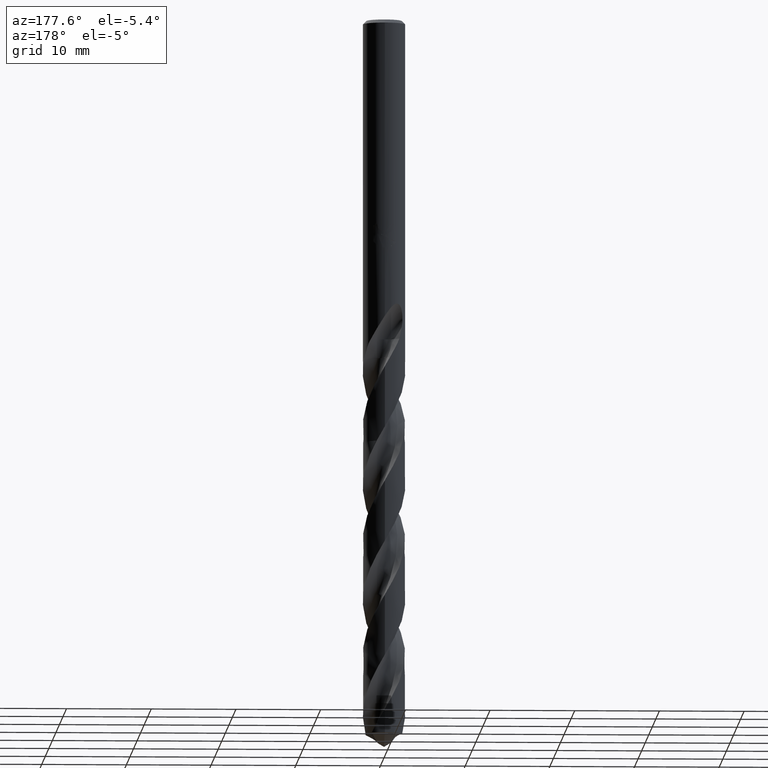
[diagram: clean part render]
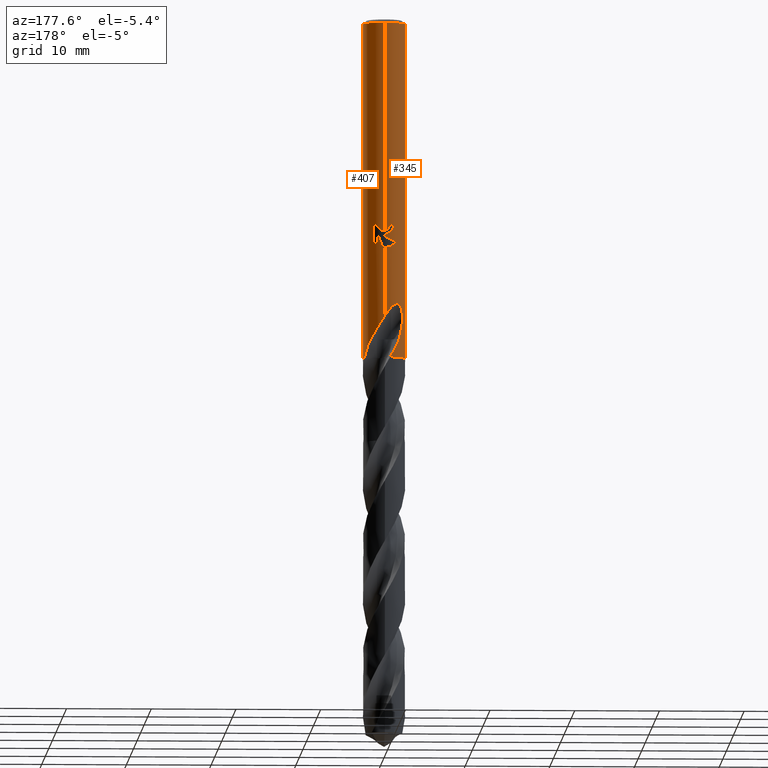
[diagram: same view with one multi-face feature highlighted, each face labeled with its STEP entity id]
A machine part, auxiliary view. The highlighted faces form ONE feature: a constant-radius fillet chain: 2 tangent blend faces with common blend radius 2.5 mm. The faces share edges in the B-rep.
Their STEP definitions:
[1] entity #407 (Cylinder):
#327=EDGE_CURVE('',#759,#573,#872,.T.);
#349=EDGE_CURVE('',#383,#773,#897,.T.);
#373=VERTEX_POINT('',#921);
#383=VERTEX_POINT('',#932);
#401=VERTEX_POINT('',#952);
#403=EDGE_CURVE('',#711,#491,#954,.T.);
#407=ADVANCED_FACE('',(#958),#959,.T.);
#417=VERTEX_POINT('',#971);
#423=EDGE_CURVE('',#711,#613,#977,.T.);
#477=EDGE_CURVE('',#773,#491,#1037,.T.);
#479=VERTEX_POINT('',#1039);
#487=EDGE_CURVE('',#523,#401,#1048,.T.);
#491=VERTEX_POINT('',#1052);
#497=EDGE_CURVE('',#501,#401,#1059,.T.);
#501=VERTEX_POINT('',#1063);
#523=VERTEX_POINT('',#1086);
#539=EDGE_CURVE('',#609,#417,#1103,.T.);
#545=EDGE_CURVE('',#573,#373,#1109,.T.);
#547=VERTEX_POINT('',#1111);
#553=EDGE_CURVE('',#593,#547,#1118,.T.);
#573=VERTEX_POINT('',#1139);
#585=EDGE_CURVE('',#417,#759,#1152,.T.);
#589=EDGE_CURVE('',#523,#373,#1156,.T.);
#593=VERTEX_POINT('',#1160);
#609=VERTEX_POINT('',#1179);
#613=VERTEX_POINT('',#1183);
#649=EDGE_CURVE('',#613,#757,#1222,.T.);
#661=EDGE_CURVE('',#479,#757,#1234,.T.);
#665=EDGE_CURVE('',#501,#383,#1238,.T.);
#681=EDGE_CURVE('',#547,#609,#1256,.T.);
#711=VERTEX_POINT('',#1291);
#757=VERTEX_POINT('',#1340);
#759=VERTEX_POINT('',#1342);
#771=EDGE_CURVE('',#479,#593,#1355,.T.);
#773=VERTEX_POINT('',#1357);
#872=B_SPLINE_CURVE_WITH_KNOTS('',3,(#2030,#2031,#2032,#2033,#2034,#2035,#2036,#2037),.UNSPECIFIED.,.F.,.F.,(4,2,2,4),(0.639744448550144,1.27948889710029,1.59563325488604,1.9117776126718),.UNSPECIFIED.);
#897=B_SPLINE_CURVE_WITH_KNOTS('',3,(#2879,#2880,#2881,#2882),.UNSPECIFIED.,.F.,.F.,(4,4),(0.0,1.43679974763685),.UNSPECIFIED.);
#921=CARTESIAN_POINT('',(1.28723065792858E-015,2.5,-25.0232688117743));
#932=CARTESIAN_POINT('',(2.03410540828571,-1.45341500886114,-36.4160494335651));
#952=CARTESIAN_POINT('',(3.06151588455594E-016,-2.5,-0.399999999999999));
#954=CIRCLE('',#3473,2.5);
#958=FACE_OUTER_BOUND('',#3476,.T.);
#959=CYLINDRICAL_SURFACE('',#3477,2.5);
#971=CARTESIAN_POINT('',(1.33721006514658,2.11231371762593,-26.2901657003257));
#977=B_SPLINE_CURVE_WITH_KNOTS('',3,(#4283,#4284,#4285,#4286,#4287,#4288,#4289,#4290),.UNSPECIFIED.,.F.,.F.,(4,2,2,4),(0.0,1.31627312626003,1.99185049965743,3.51516176769226),.UNSPECIFIED.);
#1037=B_SPLINE_CURVE_WITH_KNOTS('',3,(#5430,#5431,#5432,#5433,#5434,#5435,#5436,#5437),.UNSPECIFIED.,.F.,.F.,(4,2,2,4),(0.0,0.707135982993052,1.35611454045754,2.37839320280531),.UNSPECIFIED.);
#1039=CARTESIAN_POINT('',(-4.05848327793801E-016,2.5,-27.0310253601033));
#1048=CIRCLE('',#5450,2.5);
#1052=CARTESIAN_POINT('',(0.632828217938628,-2.41857984085302,-40.0));
#1059=LINE('',#5685,#5686);
#1063=CARTESIAN_POINT('',(7.42337167756145E-013,-2.5,-35.1275508021619));
#1086=CARTESIAN_POINT('',(0.0,2.5,-0.399999999999999));
#1103=B_SPLINE_CURVE_WITH_KNOTS('',3,(#5839,#5840,#5841,#5842,#5843,#5844,#5845,#5846),.UNSPECIFIED.,.F.,.F.,(4,2,2,4),(8.28880385962675,8.60494820735153,8.92109255507632,9.56083698033935),.UNSPECIFIED.);
#1109=B_SPLINE_CURVE_WITH_KNOTS('',3,(#6007,#6008,#6009,#6010,#6011,#6012,#6013,#6014,#6015,#6016,#6017,#6018,#6019,#6020,#6021,#6022,#6023,#6024,#6025,#6026,#6027,#6028,#6029,#6030,#6031,#6032,#6033),.UNSPECIFIED.,.F.,.F.,(4,2,3,2,2,2,2,2,2,2,2,2,4),(-0.545536025367692,-0.272768012683846,0.0,0.272768012683848,0.545536025367696,0.820534288590035,1.09553255181237,1.36658811994437,1.63764368807636,1.90985781574818,2.18207194342,2.45428607109182,2.72650019876364),.UNSPECIFIED.);
#1111=CARTESIAN_POINT('',(0.873560781758957,2.34241148404218,-25.3198931596091));
#1118=ELLIPSE('',#6043,7.61998643342443,2.5);
#1139=CARTESIAN_POINT('',(0.799431726384364,2.36873572076965,-24.000000276873));
#1152=LINE('',#6419,#6420);
#1156=LINE('',#6443,#6444);
#1160=CARTESIAN_POINT('',(0.29010312703583,2.4831109873874,-26.9998328990228));
#1179=CARTESIAN_POINT('',(0.873560781758956,2.34241148404218,-26.7587351791531));
#1183=CARTESIAN_POINT('',(1.59304016937978,1.92671300892023,-37.785));
#1222=B_SPLINE_CURVE_WITH_KNOTS('',3,(#7899,#7900,#7901,#7902,#7903,#7904,#7905,#7906,#7907,#7908,#7909,#7910,#7911,#7912,#7913,#7914,#7915,#7916,#7917,#7918,#7919,#7920,#7921,#7922,#7923,#7924,#7925,#7926),.UNSPECIFIED.,.F.,.F.,(4,2,2,2,2,2,2,2,2,2,2,2,2,4),(0.0,1.22486247815455,1.89366519594978,2.49943228356218,3.20318811322783,4.0485595874927,4.78125757901897,5.11329094183611,5.35596685633016,5.58560924775048,5.87692431295723,6.30313007142329,6.90903166799372,7.59803224229544),.UNSPECIFIED.);
#1234=LINE('',#8229,#8230);
#1238=B_SPLINE_CURVE_WITH_KNOTS('',3,(#8387,#8388,#8389,#8390,#8391,#8392,#8393,#8394,#8395,#8396,#8397,#8398,#8399,#8400,#8401,#8402,#8403,#8404,#8405,#8406,#8407,#8408,#8409,#8410,#8411,#8412,#8413,#8414),.UNSPECIFIED.,.F.,.F.,(4,2,2,2,2,2,2,2,2,2,2,2,2,4),(0.0,1.22486247815457,1.89366519594982,2.4994322835623,3.20318811322819,4.04855958749315,4.78125757901947,5.11329094183665,5.35596685633084,5.5856092477513,5.87692431295806,6.30313007142358,6.90903166799311,7.59803224229463),.UNSPECIFIED.);
#1256=LINE('',#9369,#9370);
#1291=CARTESIAN_POINT('',(2.35635253395562,0.83522615842713,-40.0));
#1340=CARTESIAN_POINT('',(-7.42670234663532E-013,2.5,-35.1275508021619));
#1342=CARTESIAN_POINT('',(1.33721006514658,2.11231371762593,-24.5150484364821));
#1355=B_SPLINE_CURVE_WITH_KNOTS('',3,(#12101,#12102,#12103,#12104,#12105,#12106,#12107,#12108,#12109,#12110,#12111,#12112,#12113,#12114),.UNSPECIFIED.,.F.,.F.,(4,2,2,2,2,2,4),(5.74184131033546,6.38338630713353,6.70167125762085,7.01995620810817,7.33824115859549,7.65652610908281,7.97267049279763),.UNSPECIFIED.);
#1357=CARTESIAN_POINT('',(1.73769335724131,-1.7973374185721,-37.785));
#2030=CARTESIAN_POINT('',(1.47242043074394,2.02039057489581,-24.7699941015186));
#2031=CARTESIAN_POINT('',(1.38849076890436,2.08155667539702,-24.5708823161051));
#2032=CARTESIAN_POINT('',(1.26456538001892,2.16245116963082,-24.3920341872377));
#2033=CARTESIAN_POINT('',(1.05211367095107,2.26919375594684,-24.1799136674318));
#2034=CARTESIAN_POINT('',(0.972490531914319,2.30498859904378,-24.113437579076));
#2035=CARTESIAN_POINT('',(0.797925633062242,2.37108096874386,-23.9951580440248));
#2036=CARTESIAN_POINT('',(0.702973512196474,2.40133766294762,-23.9433470763621));
#2037=CARTESIAN_POINT('',(0.60308445293518,2.42616758337669,-23.9013329793759));
#2879=CARTESIAN_POINT('',(2.03410540833833,-1.4534150087875,-36.416049433594));
#2880=CARTESIAN_POINT('',(1.95350746905138,-1.56621465872456,-36.8744785648213));
#2881=CARTESIAN_POINT('',(1.85636540946116,-1.68260346005003,-37.3356357888431));
#2882=CARTESIAN_POINT('',(1.73769335724131,-1.7973374185721,-37.785));
#3473=AXIS2_PLACEMENT_3D('',#12933,#12934,#12935);
#3476=EDGE_LOOP('',(#12938,#12939,#12940,#12941,#12942,#12943,#12944,#12945,#12946,#12947,#12948,#12949,#12950,#12951,#12952,#12953,#12954));
#3477=AXIS2_PLACEMENT_3D('',#12955,#12956,#12957);
#4283=CARTESIAN_POINT('',(2.35635253395562,0.835226158427156,-40.0));
#4284=CARTESIAN_POINT('',(2.2823708142564,1.04394449288153,-39.6212234312904));
#4285=CARTESIAN_POINT('',(2.18354723037421,1.23501549103719,-39.2653357678495));
#4286=CARTESIAN_POINT('',(2.00668819285104,1.49484686447764,-38.6983401005762));
#4287=CARTESIAN_POINT('',(1.96303678706287,1.54920671550938,-38.559983311342));
#4288=CARTESIAN_POINT('',(1.8392162773634,1.69863397062666,-38.2106554070012));
#4289=CARTESIAN_POINT('',(1.73197132075102,1.81184229185552,-37.9930556497254));
#4290=CARTESIAN_POINT('',(1.59304016937978,1.92671300892023,-37.785));
#5430=CARTESIAN_POINT('',(1.73769335724131,-1.7973374185721,-37.785));
#5431=CARTESIAN_POINT('',(1.6569150113083,-1.87543516120311,-37.9922094247272));
#5432=CARTESIAN_POINT('',(1.56987614013594,-1.94957127880117,-38.1948828038429));
#5433=CARTESIAN_POINT('',(1.377735776617,-2.08920177044207,-38.5949382810566));
#5434=CARTESIAN_POINT('',(1.27881648372968,-2.15164117530825,-38.7915671394607));
#5435=CARTESIAN_POINT('',(1.0007859470966,-2.29901642450116,-39.333432589061));
#5436=CARTESIAN_POINT('',(0.819853228410939,-2.36964422083007,-39.6673207937136));
#5437=CARTESIAN_POINT('',(0.632828217938612,-2.41857984085302,-40.0));
#5450=AXIS2_PLACEMENT_3D('',#13083,#13084,#13085);
#5685=CARTESIAN_POINT('',(3.06151588455594E-016,-2.5,-37.0));
#5686=VECTOR('',#13094,1.0);
#5839=CARTESIAN_POINT('',(0.603084475818766,2.4261675776884,-26.9038811410726));
#5840=CARTESIAN_POINT('',(0.702973531740107,2.40133765708919,-26.861867045411));
#5841=CARTESIAN_POINT('',(0.79792564940747,2.37108096312752,-26.8100560793959));
#5842=CARTESIAN_POINT('',(0.972490542378663,2.3049885945097,-26.6917765480973));
#5843=CARTESIAN_POINT('',(1.05211367873228,2.26919375225092,-26.6253004618463));
#5844=CARTESIAN_POINT('',(1.26456538001743,2.1624511691993,-26.4131799493004));
#5845=CARTESIAN_POINT('',(1.38849076436452,2.08155667822049,-26.2343318267404));
#5846=CARTESIAN_POINT('',(1.47242042311746,2.02039058045384,-26.035220048339));
#6007=CARTESIAN_POINT('',(0.665970925763578,2.40966444262217,-23.8144468406677));
#6008=CARTESIAN_POINT('',(0.728934701926765,2.39226283119475,-23.8776898552512));
#6009=CARTESIAN_POINT('',(0.783854191141695,2.3742527106411,-23.9578173401929));
#6010=CARTESIAN_POINT('',(0.85710538433736,2.3488026216247,-24.1342986039861));
#6011=CARTESIAN_POINT('',(0.875400981188567,2.34172439072878,-24.2307193416922));
#6012=CARTESIAN_POINT('',(0.875400981188567,2.34172439072878,-24.3216420125868));
#6013=CARTESIAN_POINT('',(0.875400981188567,2.34172439072878,-24.4125646834814));
#6014=CARTESIAN_POINT('',(0.857105384337359,2.3488026216247,-24.5089854211875));
#6015=CARTESIAN_POINT('',(0.783854191141694,2.3742527106411,-24.6854666849806));
#6016=CARTESIAN_POINT('',(0.728934701926765,2.39226283119475,-24.7655941699223));
#6017=CARTESIAN_POINT('',(0.602492334852459,2.42720833595748,-24.8925972969923));
#6018=CARTESIAN_POINT('',(0.522074206021918,2.44653483128876,-24.9480400654794));
#6019=CARTESIAN_POINT('',(0.344864497739391,2.47773336651695,-25.0220194084222));
#6020=CARTESIAN_POINT('',(0.248012633036036,2.4893558213916,-25.0405166027747));
#6021=CARTESIAN_POINT('',(0.0663518021847662,2.50075206612679,-25.0405166027747));
#6022=CARTESIAN_POINT('',(-0.0298893470602784,2.50138879143264,-25.022492023163));
#6023=CARTESIAN_POINT('',(-0.206770062073363,2.49300730059576,-24.9493021497283));
#6024=CARTESIAN_POINT('',(-0.287428111278846,2.4842541825409,-24.8941514092032));
#6025=CARTESIAN_POINT('',(-0.415014574728184,2.46615735069508,-24.7669203186748));
#6026=CARTESIAN_POINT('',(-0.470452609740376,2.45562407455832,-24.6861824514513));
#6027=CARTESIAN_POINT('',(-0.544127554922908,2.44035663307035,-24.5089289603225));
#6028=CARTESIAN_POINT('',(-0.562348199187247,2.43593195776706,-24.4123800551441));
#6029=CARTESIAN_POINT('',(-0.562348199187247,2.43593195776706,-24.2309039700295));
#6030=CARTESIAN_POINT('',(-0.544127554922907,2.44035663307035,-24.1343550648511));
#6031=CARTESIAN_POINT('',(-0.470452609740376,2.45562407455832,-23.9571015737223));
#6032=CARTESIAN_POINT('',(-0.415014574728185,2.46615735069508,-23.8763637064988));
#6033=CARTESIAN_POINT('',(-0.351085299602306,2.47522506297976,-23.8126124967618));
#6043=AXIS2_PLACEMENT_3D('',#13125,#13126,#13127);
#6419=CARTESIAN_POINT('',(1.33721006514658,2.11231371762593,-25.4026070684039));
#6420=VECTOR('',#13157,1.0);
#6443=CARTESIAN_POINT('',(-3.06151588455594E-016,2.5,-37.0));
#6444=VECTOR('',#13158,1.0);
#7899=CARTESIAN_POINT('',(1.59304016937978,1.92671300892023,-37.785));
#7900=CARTESIAN_POINT('',(1.42813088999606,2.06306289867831,-37.4372755202086));
#7901=CARTESIAN_POINT('',(1.23852248439261,2.18426849380146,-37.1130842730494));
#7902=CARTESIAN_POINT('',(0.907901906820292,2.33283132093714,-36.5715004942061));
#7903=CARTESIAN_POINT('',(0.788929199313713,2.37556719102352,-36.3809532667871));
#7904=CARTESIAN_POINT('',(0.558613061322347,2.43943743822465,-36.0121031496628));
#7905=CARTESIAN_POINT('',(0.448297999213419,2.46200264732732,-35.8355195512086));
#7906=CARTESIAN_POINT('',(0.209512345421602,2.4945698324955,-35.4549349351396));
#7907=CARTESIAN_POINT('',(0.0790471871706897,2.50221571973487,-35.247954895541));
#7908=CARTESIAN_POINT('',(-0.210682474279658,2.49612140100061,-34.8051563268861));
#7909=CARTESIAN_POINT('',(-0.38246286295752,2.47727169199295,-34.553199109158));
#7910=CARTESIAN_POINT('',(-0.713719143049006,2.401147513814,-34.1377390201459));
#7911=CARTESIAN_POINT('',(-0.896990018838398,2.34315048826453,-33.9350107197757));
#7912=CARTESIAN_POINT('',(-1.17436864103088,2.20909216907968,-33.7451761527475));
#7913=CARTESIAN_POINT('',(-1.26618275917869,2.15848209339893,-33.6982604530298));
#7914=CARTESIAN_POINT('',(-1.42706220775222,2.05427469617539,-33.6622207803808));
#7915=CARTESIAN_POINT('',(-1.49304790579865,2.00681786305759,-33.6615478309582));
#7916=CARTESIAN_POINT('',(-1.61594983366513,1.90906669010739,-33.6930900454465));
#7917=CARTESIAN_POINT('',(-1.66970100508748,1.86185482341962,-33.7226636749508));
#7918=CARTESIAN_POINT('',(-1.7790840426777,1.75839370250411,-33.8151961623513));
#7919=CARTESIAN_POINT('',(-1.82968958650594,1.70477755046067,-33.8835147599481));
#7920=CARTESIAN_POINT('',(-1.9333461036341,1.58770275411407,-34.0705922993395));
#7921=CARTESIAN_POINT('',(-1.98289185267661,1.52394715050752,-34.209348551447));
#7922=CARTESIAN_POINT('',(-2.07606080191848,1.3959266961962,-34.5975731072396));
#7923=CARTESIAN_POINT('',(-2.10974353311368,1.34139613406494,-34.874061427893));
#7924=CARTESIAN_POINT('',(-2.13127998125766,1.3069479424819,-35.5350923990096));
#7925=CARTESIAN_POINT('',(-2.11601999938069,1.33877265843269,-35.9501420238596));
#7926=CARTESIAN_POINT('',(-2.03410540828571,1.45341500886114,-36.4160494335651));
#8229=CARTESIAN_POINT('',(-3.06151588455594E-016,2.5,-37.0));
#8230=VECTOR('',#13213,1.0);
#8387=CARTESIAN_POINT('',(-1.59304016937978,-1.92671300892023,-37.785));
#8388=CARTESIAN_POINT('',(-1.42813088999606,-2.06306289867831,-37.4372755202086));
#8389=CARTESIAN_POINT('',(-1.2385224843926,-2.18426849380146,-37.1130842730494));
#8390=CARTESIAN_POINT('',(-0.907901906820292,-2.33283132093714,-36.5715004942061));
#8391=CARTESIAN_POINT('',(-0.788929199313714,-2.37556719102352,-36.3809532667871));
#8392=CARTESIAN_POINT('',(-0.558613061322334,-2.43943743822465,-36.0121031496628));
#8393=CARTESIAN_POINT('',(-0.448297999213391,-2.46200264732732,-35.8355195512085));
#8394=CARTESIAN_POINT('',(-0.209512345421602,-2.4945698324955,-35.4549349351396));
#8395=CARTESIAN_POINT('',(-0.0790471871706868,-2.50221571973487,-35.247954895541));
#8396=CARTESIAN_POINT('',(0.210682474279624,-2.49612140100061,-34.8051563268861));
#8397=CARTESIAN_POINT('',(0.38246286295751,-2.47727169199295,-34.553199109158));
#8398=CARTESIAN_POINT('',(0.713719143049012,-2.401147513814,-34.1377390201459));
#8399=CARTESIAN_POINT('',(0.8969900188384,-2.34315048826453,-33.9350107197757));
#8400=CARTESIAN_POINT('',(1.17436864103089,-2.20909216907968,-33.7451761527475));
#8401=CARTESIAN_POINT('',(1.26618275917869,-2.15848209339893,-33.6982604530298));
#8402=CARTESIAN_POINT('',(1.42706220775225,-2.05427469617537,-33.6622207803808));
#8403=CARTESIAN_POINT('',(1.49304790579866,-2.00681786305758,-33.6615478309582));
#8404=CARTESIAN_POINT('',(1.61594983366511,-1.9090666901074,-33.6930900454465));
#8405=CARTESIAN_POINT('',(1.66970100508746,-1.86185482341965,-33.7226636749508));
#8406=CARTESIAN_POINT('',(1.7790840426777,-1.75839370250411,-33.8151961623513));
#8407=CARTESIAN_POINT('',(1.82968958650594,-1.70477755046067,-33.8835147599481));
#8408=CARTESIAN_POINT('',(1.93334610363402,-1.58770275411417,-34.0705922993394));
#8409=CARTESIAN_POINT('',(1.98289185267656,-1.52394715050759,-34.2093485514468));
#8410=CARTESIAN_POINT('',(2.07606080191855,-1.39592669619611,-34.5975731072399));
#8411=CARTESIAN_POINT('',(2.10974353311369,-1.34139613406493,-34.8740614278934));
#8412=CARTESIAN_POINT('',(2.13127998125766,-1.3069479424819,-35.5350923990097));
#8413=CARTESIAN_POINT('',(2.11601999938068,-1.33877265843271,-35.9501420238597));
#8414=CARTESIAN_POINT('',(2.03410540828571,-1.45341500886114,-36.4160494335651));
#9369=CARTESIAN_POINT('',(0.873560781758957,2.34241148404218,-26.0393141693811));
#9370=VECTOR('',#13233,1.0);
#12101=CARTESIAN_POINT('',(-1.52922720239943,1.97774218831515,-26.0350256137533));
#12102=CARTESIAN_POINT('',(-1.44554661440645,2.04244541510641,-26.2336185092837));
#12103=CARTESIAN_POINT('',(-1.32224059386466,2.12776411068116,-26.4117773237405));
#12104=CARTESIAN_POINT('',(-1.11083923266715,2.24106269636897,-26.6235239182011));
#12105=CARTESIAN_POINT('',(-1.03137274700072,2.2792842117821,-26.6900993969564));
#12106=CARTESIAN_POINT('',(-0.85699847174598,2.35040844974621,-26.8086756195647));
#12107=CARTESIAN_POINT('',(-0.76207969937467,2.38327172699608,-26.8606838688763));
#12108=CARTESIAN_POINT('',(-0.562123380301406,2.4381892760378,-26.9451467146832));
#12109=CARTESIAN_POINT('',(-0.456876992863795,2.46026890642638,-26.9776691337745));
#12110=CARTESIAN_POINT('',(-0.243043404773846,2.49049986589281,-27.0207410230115));
#12111=CARTESIAN_POINT('',(-0.134450325090297,2.49863547873756,-27.0312723335086));
#12112=CARTESIAN_POINT('',(0.0770125100596432,2.50103465103285,-27.0312723335086));
#12113=CARTESIAN_POINT('',(0.185068225214801,2.49544746802312,-27.0208794424668));
#12114=CARTESIAN_POINT('',(0.29161272585759,2.48293415501054,-26.9995311633397));
#12933=CARTESIAN_POINT('',(0.0,0.0,-40.0));
#12934=DIRECTION('',(0.0,0.0,-1.0));
#12935=DIRECTION('',(0.0,1.0,0.0));
#12938=ORIENTED_EDGE('',*,*,#589,.F.);
#12939=ORIENTED_EDGE('',*,*,#487,.T.);
#12940=ORIENTED_EDGE('',*,*,#497,.F.);
#12941=ORIENTED_EDGE('',*,*,#665,.T.);
#12942=ORIENTED_EDGE('',*,*,#349,.T.);
#12943=ORIENTED_EDGE('',*,*,#477,.T.);
#12944=ORIENTED_EDGE('',*,*,#403,.F.);
#12945=ORIENTED_EDGE('',*,*,#423,.T.);
#12946=ORIENTED_EDGE('',*,*,#649,.T.);
#12947=ORIENTED_EDGE('',*,*,#661,.F.);
#12948=ORIENTED_EDGE('',*,*,#771,.T.);
#12949=ORIENTED_EDGE('',*,*,#553,.T.);
#12950=ORIENTED_EDGE('',*,*,#681,.T.);
#12951=ORIENTED_EDGE('',*,*,#539,.T.);
#12952=ORIENTED_EDGE('',*,*,#585,.T.);
#12953=ORIENTED_EDGE('',*,*,#327,.T.);
#12954=ORIENTED_EDGE('',*,*,#545,.T.);
#12955=CARTESIAN_POINT('',(0.0,0.0,-37.0));
#12956=DIRECTION('',(-0.0,-0.0,1.0));
#12957=DIRECTION('',(0.0,1.0,0.0));
#13083=CARTESIAN_POINT('',(0.0,0.0,-0.399999999999999));
#13084=DIRECTION('',(0.0,0.0,-1.0));
#13085=DIRECTION('',(0.0,1.0,0.0));
#13094=DIRECTION('',(-0.0,-0.0,1.0));
#13125=CARTESIAN_POINT('',(0.0,0.0,-27.8351219173269));
#13126=DIRECTION('',(0.944648353914092,0.0,-0.328084573619969));
#13127=DIRECTION('',(0.328084573619969,-0.0,0.944648353914092));
#13157=DIRECTION('',(-0.0,-0.0,1.0));
#13158=DIRECTION('',(0.0,0.0,-1.0));
#13213=DIRECTION('',(0.0,0.0,-1.0));
#13233=DIRECTION('',(0.0,0.0,-1.0));
[2] entity #345 (Cylinder):
#293=EDGE_CURVE('',#751,#479,#832,.T.);
#305=VERTEX_POINT('',#845);
#325=VERTEX_POINT('',#870);
#345=ADVANCED_FACE('',(#892),#893,.T.);
#355=EDGE_CURVE('',#757,#325,#903,.T.);
#357=EDGE_CURVE('',#373,#305,#905,.T.);
#373=VERTEX_POINT('',#921);
#377=EDGE_CURVE('',#435,#751,#926,.T.);
#381=VERTEX_POINT('',#930);
#389=EDGE_CURVE('',#559,#599,#939,.T.);
#401=VERTEX_POINT('',#952);
#411=EDGE_CURVE('',#381,#687,#963,.T.);
#435=VERTEX_POINT('',#990);
#453=EDGE_CURVE('',#325,#515,#1012,.T.);
#479=VERTEX_POINT('',#1039);
#497=EDGE_CURVE('',#501,#401,#1059,.T.);
#501=VERTEX_POINT('',#1063);
#509=EDGE_CURVE('',#401,#523,#1071,.T.);
#513=VERTEX_POINT('',#1075);
#515=VERTEX_POINT('',#1077);
#523=VERTEX_POINT('',#1086);
#525=EDGE_CURVE('',#599,#513,#1088,.T.);
#559=VERTEX_POINT('',#1124);
#569=EDGE_CURVE('',#305,#559,#1135,.T.);
#589=EDGE_CURVE('',#523,#373,#1156,.T.);
#591=EDGE_CURVE('',#515,#687,#1158,.T.);
#599=VERTEX_POINT('',#1166);
#623=VERTEX_POINT('',#1195);
#633=EDGE_CURVE('',#381,#623,#1205,.T.);
#661=EDGE_CURVE('',#479,#757,#1234,.T.);
#687=VERTEX_POINT('',#1262);
#713=EDGE_CURVE('',#623,#501,#1293,.T.);
#751=VERTEX_POINT('',#1333);
#757=VERTEX_POINT('',#1340);
#765=EDGE_CURVE('',#513,#435,#1349,.T.);
#832=B_SPLINE_CURVE_WITH_KNOTS('',3,(#1412,#1413,#1414,#1415,#1416,#1417,#1418,#1419,#1420,#1421,#1422,#1423,#1424,#1425),.UNSPECIFIED.,.F.,.F.,(4,2,2,2,2,2,4),(5.74184131033546,6.38338630713353,6.70167125762085,7.01995620810817,7.33824115859549,7.65652610908281,7.97267049279763),.UNSPECIFIED.);
#845=CARTESIAN_POINT('',(-0.486378944383046,2.45223072374131,-24.6432837483006));
#870=CARTESIAN_POINT('',(-2.03410540828571,1.45341500886114,-36.4160494335651));
#892=FACE_OUTER_BOUND('',#2873,.T.);
#893=CYLINDRICAL_SURFACE('',#2874,2.5);
#903=B_SPLINE_CURVE_WITH_KNOTS('',3,(#2919,#2920,#2921,#2922,#2923,#2924,#2925,#2926,#2927,#2928,#2929,#2930,#2931,#2932,#2933,#2934,#2935,#2936,#2937,#2938,#2939,#2940,#2941,#2942,#2943,#2944,#2945,#2946),.UNSPECIFIED.,.F.,.F.,(4,2,2,2,2,2,2,2,2,2,2,2,2,4),(0.0,1.22486247815455,1.89366519594978,2.49943228356218,3.20318811322783,4.0485595874927,4.78125757901897,5.11329094183611,5.35596685633016,5.58560924775048,5.87692431295723,6.30313007142329,6.90903166799372,7.59803224229544),.UNSPECIFIED.);
#905=B_SPLINE_CURVE_WITH_KNOTS('',3,(#2949,#2950,#2951,#2952,#2953,#2954,#2955,#2956,#2957,#2958,#2959,#2960,#2961,#2962,#2963,#2964,#2965,#2966,#2967,#2968,#2969,#2970,#2971,#2972,#2973,#2974,#2975),.UNSPECIFIED.,.F.,.F.,(4,2,3,2,2,2,2,2,2,2,2,2,4),(-0.545536025367692,-0.272768012683846,0.0,0.272768012683848,0.545536025367696,0.820534288590035,1.09553255181237,1.36658811994437,1.63764368807636,1.90985781574818,2.18207194342,2.45428607109182,2.72650019876364),.UNSPECIFIED.);
#921=CARTESIAN_POINT('',(1.28723065792858E-015,2.5,-25.0232688117743));
#926=ELLIPSE('',#3223,2.78732108010715,2.5);
#930=CARTESIAN_POINT('',(-2.35635253395562,-0.835226158427125,-40.0));
#939=CIRCLE('',#3240,2.5);
#952=CARTESIAN_POINT('',(3.06151588455594E-016,-2.5,-0.399999999999999));
#963=CIRCLE('',#3482,2.5);
#990=CARTESIAN_POINT('',(-3.06151588455594E-016,2.5,-25.7128911336578));
#1012=B_SPLINE_CURVE_WITH_KNOTS('',3,(#5374,#5375,#5376,#5377),.UNSPECIFIED.,.F.,.F.,(4,4),(0.0,1.43679974763677),.UNSPECIFIED.);
#1039=CARTESIAN_POINT('',(-4.05848327793801E-016,2.5,-27.0310253601033));
#1059=LINE('',#5685,#5686);
#1063=CARTESIAN_POINT('',(7.42337167756145E-013,-2.5,-35.1275508021619));
#1071=CIRCLE('',#5786,2.5);
#1075=CARTESIAN_POINT('',(2.06254272401591E-016,2.5,-25.5000801551881));
#1077=CARTESIAN_POINT('',(-1.73769335724131,1.7973374185721,-37.785));
#1086=CARTESIAN_POINT('',(0.0,2.5,-0.399999999999999));
#1088=B_SPLINE_CURVE_WITH_KNOTS('',3,(#5806,#5807,#5808,#5809,#5810,#5811,#5812,#5813,#5814,#5815,#5816,#5817,#5818,#5819,#5820,#5821,#5822,#5823),.UNSPECIFIED.,.F.,.F.,(4,2,2,2,2,2,2,2,4),(3.40747025134213,3.63399679422936,3.86052333711658,4.08704988000381,4.54010296577826,4.98894677805631,5.21336868419534,5.43779059033436,5.89737811399236),.UNSPECIFIED.);
#1124=CARTESIAN_POINT('',(-0.562333990228013,2.43593523793927,-24.3171221986971));
#1135=B_SPLINE_CURVE_WITH_KNOTS('',3,(#6211,#6212,#6213,#6214,#6215,#6216,#6217,#6218,#6219,#6220,#6221,#6222,#6223,#6224,#6225,#6226,#6227,#6228,#6229,#6230,#6231,#6232,#6233,#6234,#6235,#6236,#6237),.UNSPECIFIED.,.F.,.F.,(4,2,3,2,2,2,2,2,2,2,2,2,4),(-0.545536025367692,-0.272768012683846,0.0,0.272768012683848,0.545536025367696,0.820534288590035,1.09553255181237,1.36658811994437,1.63764368807636,1.90985781574818,2.18207194342,2.45428607109182,2.72650019876364),.UNSPECIFIED.);
#1156=LINE('',#6443,#6444);
#1158=B_SPLINE_CURVE_WITH_KNOTS('',3,(#6447,#6448,#6449,#6450,#6451,#6452,#6453,#6454),.UNSPECIFIED.,.F.,.F.,(4,2,2,4),(0.0,0.707135982986869,1.35611454030624,2.3783932033175),.UNSPECIFIED.);
#1166=CARTESIAN_POINT('',(-1.0350734039088,2.27565881636959,-24.3171221986971));
#1195=CARTESIAN_POINT('',(-1.59304016937978,-1.92671300892023,-37.785));
#1205=B_SPLINE_CURVE_WITH_KNOTS('',3,(#7435,#7436,#7437,#7438,#7439,#7440,#7441,#7442),.UNSPECIFIED.,.F.,.F.,(4,2,2,4),(0.0,1.31627312484389,1.99185049830102,3.51516174265801),.UNSPECIFIED.);
#1234=LINE('',#8229,#8230);
#1262=CARTESIAN_POINT('',(-0.632828217938627,2.41857984085302,-40.0));
#1293=B_SPLINE_CURVE_WITH_KNOTS('',3,(#10376,#10377,#10378,#10379,#10380,#10381,#10382,#10383,#10384,#10385,#10386,#10387,#10388,#10389,#10390,#10391,#10392,#10393,#10394,#10395,#10396,#10397,#10398,#10399,#10400,#10401,#10402,#10403),.UNSPECIFIED.,.F.,.F.,(4,2,2,2,2,2,2,2,2,2,2,2,2,4),(0.0,1.22486247815457,1.89366519594982,2.4994322835623,3.20318811322819,4.04855958749315,4.78125757901947,5.11329094183665,5.35596685633084,5.5856092477513,5.87692431295806,6.30313007142358,6.90903166799311,7.59803224229463),.UNSPECIFIED.);
#1333=CARTESIAN_POINT('',(-1.337052752443,2.11241329696265,-26.3720803908795));
#1340=CARTESIAN_POINT('',(-7.42670234663532E-013,2.5,-35.1275508021619));
#1349=LINE('',#12091,#12092);
#1412=CARTESIAN_POINT('',(-1.52922720239943,1.97774218831515,-26.0350256137533));
#1413=CARTESIAN_POINT('',(-1.44554661440645,2.04244541510641,-26.2336185092837));
#1414=CARTESIAN_POINT('',(-1.32224059386466,2.12776411068116,-26.4117773237405));
#1415=CARTESIAN_POINT('',(-1.11083923266715,2.24106269636897,-26.6235239182011));
#1416=CARTESIAN_POINT('',(-1.03137274700072,2.2792842117821,-26.6900993969564));
#1417=CARTESIAN_POINT('',(-0.85699847174598,2.35040844974621,-26.8086756195647));
#1418=CARTESIAN_POINT('',(-0.76207969937467,2.38327172699608,-26.8606838688763));
#1419=CARTESIAN_POINT('',(-0.562123380301406,2.4381892760378,-26.9451467146832));
#1420=CARTESIAN_POINT('',(-0.456876992863795,2.46026890642638,-26.9776691337745));
#1421=CARTESIAN_POINT('',(-0.243043404773846,2.49049986589281,-27.0207410230115));
#1422=CARTESIAN_POINT('',(-0.134450325090297,2.49863547873756,-27.0312723335086));
#1423=CARTESIAN_POINT('',(0.0770125100596432,2.50103465103285,-27.0312723335086));
#1424=CARTESIAN_POINT('',(0.185068225214801,2.49544746802312,-27.0208794424668));
#1425=CARTESIAN_POINT('',(0.29161272585759,2.48293415501054,-26.9995311633397));
#2873=EDGE_LOOP('',(#12875,#12876,#12877,#12878,#12879,#12880,#12881,#12882,#12883,#12884,#12885,#12886,#12887,#12888,#12889,#12890,#12891));
#2874=AXIS2_PLACEMENT_3D('',#12892,#12893,#12894);
#2919=CARTESIAN_POINT('',(1.59304016937978,1.92671300892023,-37.785));
#2920=CARTESIAN_POINT('',(1.42813088999606,2.06306289867831,-37.4372755202086));
#2921=CARTESIAN_POINT('',(1.23852248439261,2.18426849380146,-37.1130842730494));
#2922=CARTESIAN_POINT('',(0.907901906820292,2.33283132093714,-36.5715004942061));
#2923=CARTESIAN_POINT('',(0.788929199313713,2.37556719102352,-36.3809532667871));
#2924=CARTESIAN_POINT('',(0.558613061322347,2.43943743822465,-36.0121031496628));
#2925=CARTESIAN_POINT('',(0.448297999213419,2.46200264732732,-35.8355195512086));
#2926=CARTESIAN_POINT('',(0.209512345421602,2.4945698324955,-35.4549349351396));
#2927=CARTESIAN_POINT('',(0.0790471871706897,2.50221571973487,-35.247954895541));
#2928=CARTESIAN_POINT('',(-0.210682474279658,2.49612140100061,-34.8051563268861));
#2929=CARTESIAN_POINT('',(-0.38246286295752,2.47727169199295,-34.553199109158));
#2930=CARTESIAN_POINT('',(-0.713719143049006,2.401147513814,-34.1377390201459));
#2931=CARTESIAN_POINT('',(-0.896990018838398,2.34315048826453,-33.9350107197757));
#2932=CARTESIAN_POINT('',(-1.17436864103088,2.20909216907968,-33.7451761527475));
#2933=CARTESIAN_POINT('',(-1.26618275917869,2.15848209339893,-33.6982604530298));
#2934=CARTESIAN_POINT('',(-1.42706220775222,2.05427469617539,-33.6622207803808));
#2935=CARTESIAN_POINT('',(-1.49304790579865,2.00681786305759,-33.6615478309582));
#2936=CARTESIAN_POINT('',(-1.61594983366513,1.90906669010739,-33.6930900454465));
#2937=CARTESIAN_POINT('',(-1.66970100508748,1.86185482341962,-33.7226636749508));
#2938=CARTESIAN_POINT('',(-1.7790840426777,1.75839370250411,-33.8151961623513));
#2939=CARTESIAN_POINT('',(-1.82968958650594,1.70477755046067,-33.8835147599481));
#2940=CARTESIAN_POINT('',(-1.9333461036341,1.58770275411407,-34.0705922993395));
#2941=CARTESIAN_POINT('',(-1.98289185267661,1.52394715050752,-34.209348551447));
#2942=CARTESIAN_POINT('',(-2.07606080191848,1.3959266961962,-34.5975731072396));
#2943=CARTESIAN_POINT('',(-2.10974353311368,1.34139613406494,-34.874061427893));
#2944=CARTESIAN_POINT('',(-2.13127998125766,1.3069479424819,-35.5350923990096));
#2945=CARTESIAN_POINT('',(-2.11601999938069,1.33877265843269,-35.9501420238596));
#2946=CARTESIAN_POINT('',(-2.03410540828571,1.45341500886114,-36.4160494335651));
#2949=CARTESIAN_POINT('',(0.665970925763578,2.40966444262217,-23.8144468406677));
#2950=CARTESIAN_POINT('',(0.728934701926765,2.39226283119475,-23.8776898552512));
#2951=CARTESIAN_POINT('',(0.783854191141695,2.3742527106411,-23.9578173401929));
#2952=CARTESIAN_POINT('',(0.85710538433736,2.3488026216247,-24.1342986039861));
#2953=CARTESIAN_POINT('',(0.875400981188567,2.34172439072878,-24.2307193416922));
#2954=CARTESIAN_POINT('',(0.875400981188567,2.34172439072878,-24.3216420125868));
#2955=CARTESIAN_POINT('',(0.875400981188567,2.34172439072878,-24.4125646834814));
#2956=CARTESIAN_POINT('',(0.857105384337359,2.3488026216247,-24.5089854211875));
#2957=CARTESIAN_POINT('',(0.783854191141694,2.3742527106411,-24.6854666849806));
#2958=CARTESIAN_POINT('',(0.728934701926765,2.39226283119475,-24.7655941699223));
#2959=CARTESIAN_POINT('',(0.602492334852459,2.42720833595748,-24.8925972969923));
#2960=CARTESIAN_POINT('',(0.522074206021918,2.44653483128876,-24.9480400654794));
#2961=CARTESIAN_POINT('',(0.344864497739391,2.47773336651695,-25.0220194084222));
#2962=CARTESIAN_POINT('',(0.248012633036036,2.4893558213916,-25.0405166027747));
#2963=CARTESIAN_POINT('',(0.0663518021847662,2.50075206612679,-25.0405166027747));
#2964=CARTESIAN_POINT('',(-0.0298893470602784,2.50138879143264,-25.022492023163));
#2965=CARTESIAN_POINT('',(-0.206770062073363,2.49300730059576,-24.9493021497283));
#2966=CARTESIAN_POINT('',(-0.287428111278846,2.4842541825409,-24.8941514092032));
#2967=CARTESIAN_POINT('',(-0.415014574728184,2.46615735069508,-24.7669203186748));
#2968=CARTESIAN_POINT('',(-0.470452609740376,2.45562407455832,-24.6861824514513));
#2969=CARTESIAN_POINT('',(-0.544127554922908,2.44035663307035,-24.5089289603225));
#2970=CARTESIAN_POINT('',(-0.562348199187247,2.43593195776706,-24.4123800551441));
#2971=CARTESIAN_POINT('',(-0.562348199187247,2.43593195776706,-24.2309039700295));
#2972=CARTESIAN_POINT('',(-0.544127554922907,2.44035663307035,-24.1343550648511));
#2973=CARTESIAN_POINT('',(-0.470452609740376,2.45562407455832,-23.9571015737223));
#2974=CARTESIAN_POINT('',(-0.415014574728185,2.46615735069508,-23.8763637064988));
#2975=CARTESIAN_POINT('',(-0.351085299602306,2.47522506297976,-23.8126124967618));
#3223=AXIS2_PLACEMENT_3D('',#12908,#12909,#12910);
#3240=AXIS2_PLACEMENT_3D('',#12922,#12923,#12924);
#3482=AXIS2_PLACEMENT_3D('',#12958,#12959,#12960);
#5374=CARTESIAN_POINT('',(-2.03410540833833,1.4534150087875,-36.416049433594));
#5375=CARTESIAN_POINT('',(-1.95350746905139,1.56621465872455,-36.8744785648213));
#5376=CARTESIAN_POINT('',(-1.85636540946116,1.68260346005002,-37.3356357888431));
#5377=CARTESIAN_POINT('',(-1.73769335724131,1.7973374185721,-37.785));
#5685=CARTESIAN_POINT('',(3.06151588455594E-016,-2.5,-37.0));
#5686=VECTOR('',#13094,1.0);
#5786=AXIS2_PLACEMENT_3D('',#13096,#13097,#13098);
#5806=CARTESIAN_POINT('',(-1.01249105024972,2.28579567616273,-24.0960724981866));
#5807=CARTESIAN_POINT('',(-1.02776520969296,2.27903000165907,-24.1730604203531));
#5808=CARTESIAN_POINT('',(-1.03510901790186,2.27564261716515,-24.2507930131037));
#5809=CARTESIAN_POINT('',(-1.03510901790186,2.27564261716515,-24.4018107083619));
#5810=CARTESIAN_POINT('',(-1.02776520969296,2.27903000165907,-24.4795433011124));
#5811=CARTESIAN_POINT('',(-0.997216890806469,2.29256135066638,-24.6335191454456));
#5812=CARTESIAN_POINT('',(-0.974023085473006,2.30268573317761,-24.709766240962));
#5813=CARTESIAN_POINT('',(-0.882620396703176,2.3399382303257,-24.9283916468438));
#5814=CARTESIAN_POINT('',(-0.791438931771837,2.37392732019541,-25.060528896947));
#5815=CARTESIAN_POINT('',(-0.582569540250674,2.43357741163698,-25.2683635025582));
#5816=CARTESIAN_POINT('',(-0.450707212977386,2.46338886979259,-25.3587659383457));
#5817=CARTESIAN_POINT('',(-0.232809556070147,2.49021186651352,-25.4491762805451));
#5818=CARTESIAN_POINT('',(-0.156868678239248,2.4962479730291,-25.4720810709889));
#5819=CARTESIAN_POINT('',(-0.00382397135294391,2.50116914708075,-25.5021808764159));
#5820=CARTESIAN_POINT('',(0.0732815758300291,2.50004518820827,-25.5093686300866));
#5821=CARTESIAN_POINT('',(0.300885062429601,2.48655125524764,-25.5093686300866));
#5822=CARTESIAN_POINT('',(0.461355574497977,2.46164847460973,-25.4780070879051));
#5823=CARTESIAN_POINT('',(0.607066912513942,2.42517417183401,-25.4166530697376));
#6211=CARTESIAN_POINT('',(0.665970925763578,2.40966444262217,-23.8144468406677));
#6212=CARTESIAN_POINT('',(0.728934701926765,2.39226283119475,-23.8776898552512));
#6213=CARTESIAN_POINT('',(0.783854191141695,2.3742527106411,-23.9578173401929));
#6214=CARTESIAN_POINT('',(0.85710538433736,2.3488026216247,-24.1342986039861));
#6215=CARTESIAN_POINT('',(0.875400981188567,2.34172439072878,-24.2307193416922));
#6216=CARTESIAN_POINT('',(0.875400981188567,2.34172439072878,-24.3216420125868));
#6217=CARTESIAN_POINT('',(0.875400981188567,2.34172439072878,-24.4125646834814));
#6218=CARTESIAN_POINT('',(0.857105384337359,2.3488026216247,-24.5089854211875));
#6219=CARTESIAN_POINT('',(0.783854191141694,2.3742527106411,-24.6854666849806));
#6220=CARTESIAN_POINT('',(0.728934701926765,2.39226283119475,-24.7655941699223));
#6221=CARTESIAN_POINT('',(0.602492334852459,2.42720833595748,-24.8925972969923));
#6222=CARTESIAN_POINT('',(0.522074206021918,2.44653483128876,-24.9480400654794));
#6223=CARTESIAN_POINT('',(0.344864497739391,2.47773336651695,-25.0220194084222));
#6224=CARTESIAN_POINT('',(0.248012633036036,2.4893558213916,-25.0405166027747));
#6225=CARTESIAN_POINT('',(0.0663518021847662,2.50075206612679,-25.0405166027747));
#6226=CARTESIAN_POINT('',(-0.0298893470602784,2.50138879143264,-25.022492023163));
#6227=CARTESIAN_POINT('',(-0.206770062073363,2.49300730059576,-24.9493021497283));
#6228=CARTESIAN_POINT('',(-0.287428111278846,2.4842541825409,-24.8941514092032));
#6229=CARTESIAN_POINT('',(-0.415014574728184,2.46615735069508,-24.7669203186748));
#6230=CARTESIAN_POINT('',(-0.470452609740376,2.45562407455832,-24.6861824514513));
#6231=CARTESIAN_POINT('',(-0.544127554922908,2.44035663307035,-24.5089289603225));
#6232=CARTESIAN_POINT('',(-0.562348199187247,2.43593195776706,-24.4123800551441));
#6233=CARTESIAN_POINT('',(-0.562348199187247,2.43593195776706,-24.2309039700295));
#6234=CARTESIAN_POINT('',(-0.544127554922907,2.44035663307035,-24.1343550648511));
#6235=CARTESIAN_POINT('',(-0.470452609740376,2.45562407455832,-23.9571015737223));
#6236=CARTESIAN_POINT('',(-0.415014574728185,2.46615735069508,-23.8763637064988));
#6237=CARTESIAN_POINT('',(-0.351085299602306,2.47522506297976,-23.8126124967618));
#6443=CARTESIAN_POINT('',(-3.06151588455594E-016,2.5,-37.0));
#6444=VECTOR('',#13158,1.0);
#6447=CARTESIAN_POINT('',(-1.73769335724131,1.7973374185721,-37.785));
#6448=CARTESIAN_POINT('',(-1.65691501130901,1.87543516120243,-37.9922094247254));
#6449=CARTESIAN_POINT('',(-1.56987614013672,1.94957127880059,-38.1948828038413));
#6450=CARTESIAN_POINT('',(-1.37773577663604,2.08920177042822,-38.594938281017));
#6451=CARTESIAN_POINT('',(-1.27881648377314,2.15164117527924,-38.7915671393721));
#6452=CARTESIAN_POINT('',(-1.0007859471259,2.29901642449507,-39.33343258901));
#6453=CARTESIAN_POINT('',(-0.819853228437365,2.36964422082315,-39.6673207936666));
#6454=CARTESIAN_POINT('',(-0.632828217938616,2.41857984085301,-40.0));
#7435=CARTESIAN_POINT('',(-2.35635253395561,-0.835226158427123,-40.0));
#7436=CARTESIAN_POINT('',(-2.28237081433599,-1.04394449265694,-39.6212234316979));
#7437=CARTESIAN_POINT('',(-2.18354723049426,-1.2350154908614,-39.265335768234));
#7438=CARTESIAN_POINT('',(-2.00668819271612,-1.49484686467553,-38.6983401001438));
#7439=CARTESIAN_POINT('',(-1.96303678699272,-1.54920671563626,-38.5599833109313));
#7440=CARTESIAN_POINT('',(-1.83921627651534,-1.69863397155483,-38.2106554050888));
#7441=CARTESIAN_POINT('',(-1.73197132027344,-1.81184229225039,-37.9930556490102));
#7442=CARTESIAN_POINT('',(-1.59304016937978,-1.92671300892023,-37.785));
#8229=CARTESIAN_POINT('',(-3.06151588455594E-016,2.5,-37.0));
#8230=VECTOR('',#13213,1.0);
#10376=CARTESIAN_POINT('',(-1.59304016937978,-1.92671300892023,-37.785));
#10377=CARTESIAN_POINT('',(-1.42813088999606,-2.06306289867831,-37.4372755202086));
#10378=CARTESIAN_POINT('',(-1.2385224843926,-2.18426849380146,-37.1130842730494));
#10379=CARTESIAN_POINT('',(-0.907901906820292,-2.33283132093714,-36.5715004942061));
#10380=CARTESIAN_POINT('',(-0.788929199313714,-2.37556719102352,-36.3809532667871));
#10381=CARTESIAN_POINT('',(-0.558613061322334,-2.43943743822465,-36.0121031496628));
#10382=CARTESIAN_POINT('',(-0.448297999213391,-2.46200264732732,-35.8355195512085));
#10383=CARTESIAN_POINT('',(-0.209512345421602,-2.4945698324955,-35.4549349351396));
#10384=CARTESIAN_POINT('',(-0.0790471871706868,-2.50221571973487,-35.247954895541));
#10385=CARTESIAN_POINT('',(0.210682474279624,-2.49612140100061,-34.8051563268861));
#10386=CARTESIAN_POINT('',(0.38246286295751,-2.47727169199295,-34.553199109158));
#10387=CARTESIAN_POINT('',(0.713719143049012,-2.401147513814,-34.1377390201459));
#10388=CARTESIAN_POINT('',(0.8969900188384,-2.34315048826453,-33.9350107197757));
#10389=CARTESIAN_POINT('',(1.17436864103089,-2.20909216907968,-33.7451761527475));
#10390=CARTESIAN_POINT('',(1.26618275917869,-2.15848209339893,-33.6982604530298));
#10391=CARTESIAN_POINT('',(1.42706220775225,-2.05427469617537,-33.6622207803808));
#10392=CARTESIAN_POINT('',(1.49304790579866,-2.00681786305758,-33.6615478309582));
#10393=CARTESIAN_POINT('',(1.61594983366511,-1.9090666901074,-33.6930900454465));
#10394=CARTESIAN_POINT('',(1.66970100508746,-1.86185482341965,-33.7226636749508));
#10395=CARTESIAN_POINT('',(1.7790840426777,-1.75839370250411,-33.8151961623513));
#10396=CARTESIAN_POINT('',(1.82968958650594,-1.70477755046067,-33.8835147599481));
#10397=CARTESIAN_POINT('',(1.93334610363402,-1.58770275411417,-34.0705922993394));
#10398=CARTESIAN_POINT('',(1.98289185267656,-1.52394715050759,-34.2093485514468));
#10399=CARTESIAN_POINT('',(2.07606080191855,-1.39592669619611,-34.5975731072399));
#10400=CARTESIAN_POINT('',(2.10974353311369,-1.34139613406493,-34.8740614278934));
#10401=CARTESIAN_POINT('',(2.13127998125766,-1.3069479424819,-35.5350923990097));
#10402=CARTESIAN_POINT('',(2.11601999938068,-1.33877265843271,-35.9501420238597));
#10403=CARTESIAN_POINT('',(2.03410540828571,-1.45341500886114,-36.4160494335651));
#12091=CARTESIAN_POINT('',(-3.06151588455594E-016,2.5,-37.0));
#12092=VECTOR('',#13319,1.0);
#12875=ORIENTED_EDGE('',*,*,#589,.T.);
#12876=ORIENTED_EDGE('',*,*,#357,.T.);
#12877=ORIENTED_EDGE('',*,*,#569,.T.);
#12878=ORIENTED_EDGE('',*,*,#389,.T.);
#12879=ORIENTED_EDGE('',*,*,#525,.T.);
#12880=ORIENTED_EDGE('',*,*,#765,.T.);
#12881=ORIENTED_EDGE('',*,*,#377,.T.);
#12882=ORIENTED_EDGE('',*,*,#293,.T.);
#12883=ORIENTED_EDGE('',*,*,#661,.T.);
#12884=ORIENTED_EDGE('',*,*,#355,.T.);
#12885=ORIENTED_EDGE('',*,*,#453,.T.);
#12886=ORIENTED_EDGE('',*,*,#591,.T.);
#12887=ORIENTED_EDGE('',*,*,#411,.F.);
#12888=ORIENTED_EDGE('',*,*,#633,.T.);
#12889=ORIENTED_EDGE('',*,*,#713,.T.);
#12890=ORIENTED_EDGE('',*,*,#497,.T.);
#12891=ORIENTED_EDGE('',*,*,#509,.T.);
#12892=CARTESIAN_POINT('',(0.0,0.0,-37.0));
#12893=DIRECTION('',(-0.0,-0.0,1.0));
#12894=DIRECTION('',(0.0,1.0,0.0));
#12908=CARTESIAN_POINT('',(0.0,0.0,-25.7128911336578));
#12909=DIRECTION('',(-0.442195774284071,0.0,0.896918556617774));
#12910=DIRECTION('',(0.896918556617774,-0.0,0.442195774284071));
#12922=CARTESIAN_POINT('',(0.0,0.0,-24.3171221986971));
#12923=DIRECTION('',(0.0,-0.0,1.0));
#12924=DIRECTION('',(0.0,1.0,0.0));
#12958=CARTESIAN_POINT('',(0.0,0.0,-40.0));
#12959=DIRECTION('',(0.0,0.0,-1.0));
#12960=DIRECTION('',(0.0,1.0,0.0));
#13094=DIRECTION('',(-0.0,-0.0,1.0));
#13096=CARTESIAN_POINT('',(0.0,0.0,-0.399999999999999));
#13097=DIRECTION('',(0.0,0.0,-1.0));
#13098=DIRECTION('',(0.0,1.0,0.0));
#13158=DIRECTION('',(0.0,0.0,-1.0));
#13213=DIRECTION('',(0.0,0.0,-1.0));
#13319=DIRECTION('',(0.0,0.0,-1.0));